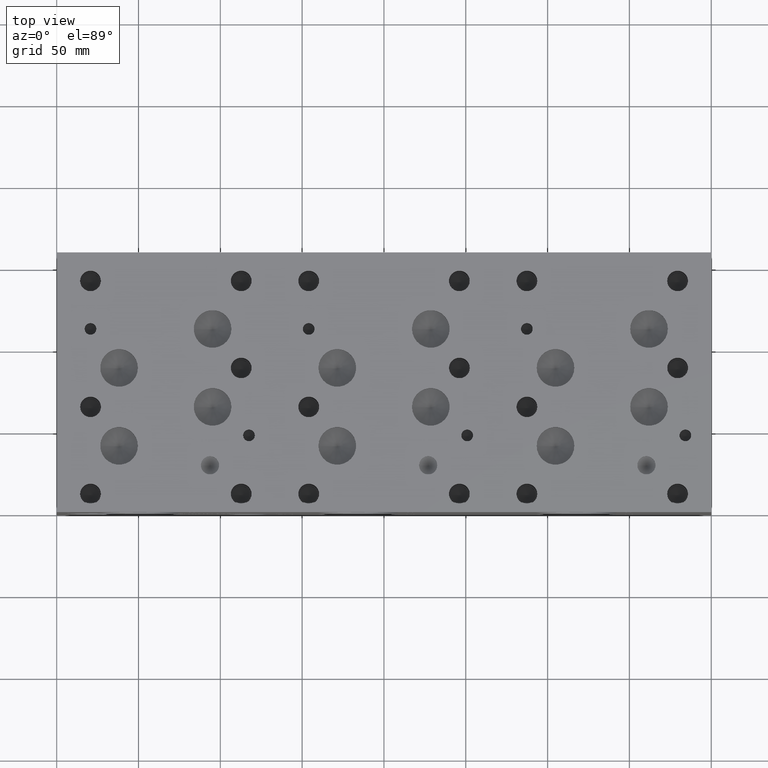
[diagram: clean part render]
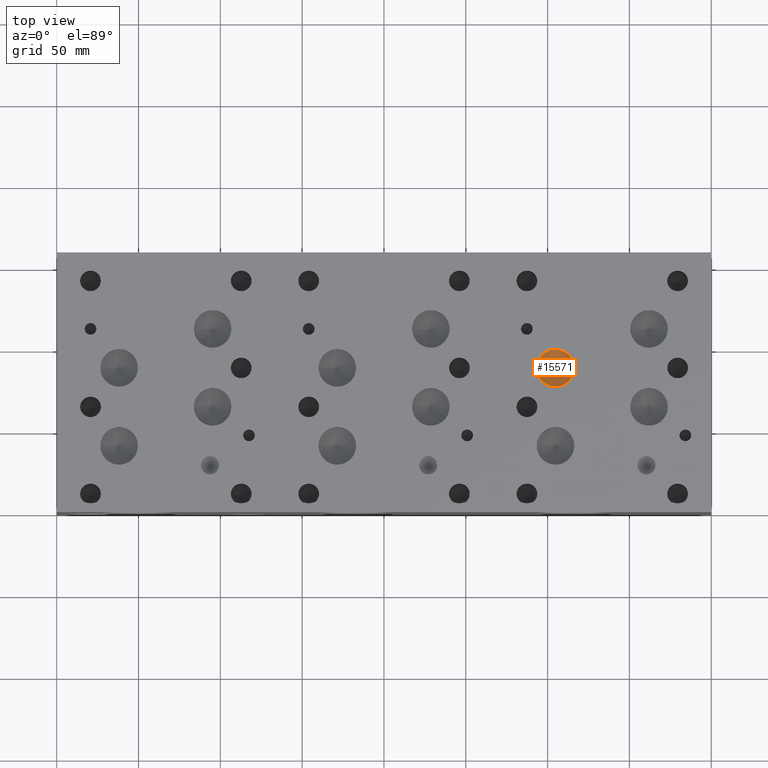
[diagram: same view with one face highlighted and labeled with its STEP entity id]
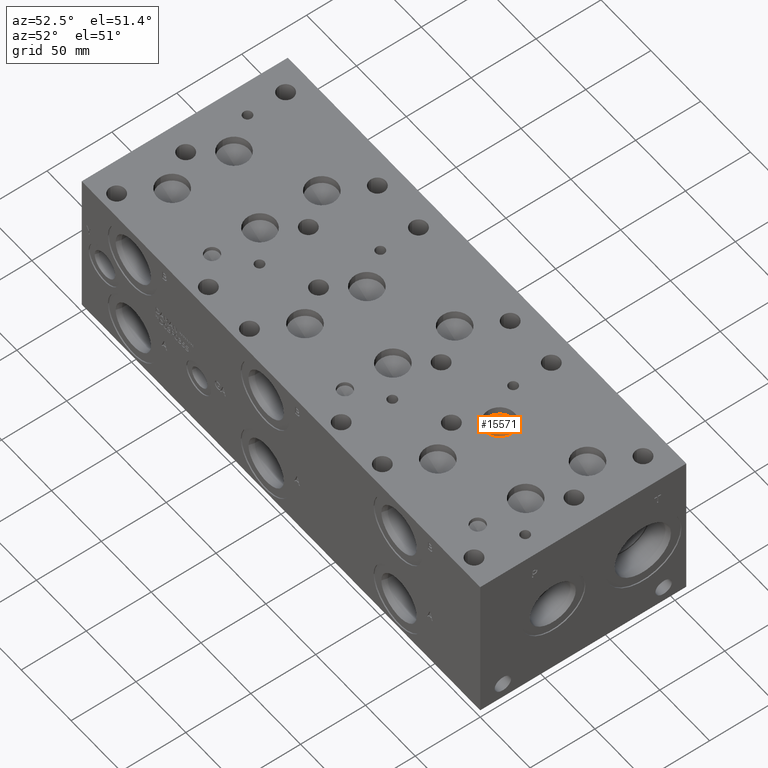
[diagram: same view with one face highlighted and labeled with its STEP entity id]
A machine part, top view. The second image highlights one B-rep face of the part: STEP entity #15571.
A second angle (auxiliary view) of the same face is appended — the face is thin or edge-on in the first view.
In plain terms, the highlighted conical surface has half-angle 60 deg.
Its self-contained STEP definition (entity closure, byte-faithful):
#213=CONICAL_SURFACE('',#16505,5.7531,1.0471975511966);
#719=CIRCLE('',#16506,11.5062);
#720=CIRCLE('',#16507,11.5062);
#2151=FACE_OUTER_BOUND('',#3070,.T.);
#3070=EDGE_LOOP('',(#13336,#13337,#13338,#13339));
#4476=LINE('',#26693,#5803);
#5803=VECTOR('',#19670,5.7531);
#7175=VERTEX_POINT('',#26689);
#7176=VERTEX_POINT('',#26690);
#7177=VERTEX_POINT('',#26692);
#9299=EDGE_CURVE('',#7175,#7176,#719,.T.);
#9300=EDGE_CURVE('',#7176,#7177,#4476,.T.);
#9301=EDGE_CURVE('',#7176,#7175,#720,.T.);
#13336=ORIENTED_EDGE('',*,*,#9299,.T.);
#13337=ORIENTED_EDGE('',*,*,#9300,.T.);
#13338=ORIENTED_EDGE('',*,*,#9300,.F.);
#13339=ORIENTED_EDGE('',*,*,#9301,.T.);
#15571=ADVANCED_FACE('',(#2151),#213,.F.);
#16505=AXIS2_PLACEMENT_3D('',#26688,#19666,#19667);
#16506=AXIS2_PLACEMENT_3D('',#26691,#19668,#19669);
#16507=AXIS2_PLACEMENT_3D('',#26694,#19671,#19672);
#19666=DIRECTION('center_axis',(0.,0.,1.));
#19667=DIRECTION('ref_axis',(1.,0.,0.));
#19668=DIRECTION('center_axis',(0.,0.,1.));
#19669=DIRECTION('ref_axis',(1.,0.,0.));
#19670=DIRECTION('',(0.866025403784439,1.06057523872491E-16,-0.5));
#19671=DIRECTION('center_axis',(0.,0.,1.));
#19672=DIRECTION('ref_axis',(1.,0.,0.));
#26688=CARTESIAN_POINT('Origin',(304.8,88.1126,110.685336166325));
#26689=CARTESIAN_POINT('',(316.3062,88.1126,114.00689));
#26690=CARTESIAN_POINT('',(293.2938,88.1126,114.00689));
#26691=CARTESIAN_POINT('Origin',(304.8,88.1126,114.00689));
#26692=CARTESIAN_POINT('',(304.8,88.1126,107.36378233265));
#26693=CARTESIAN_POINT('',(299.0469,88.1126,110.685336166325));
#26694=CARTESIAN_POINT('Origin',(304.8,88.1126,114.00689));